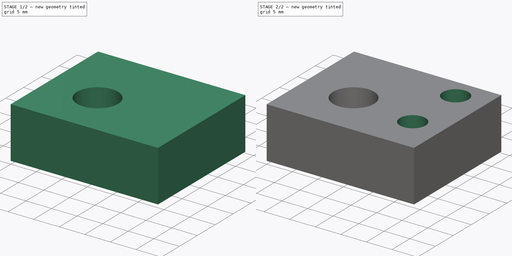
[diagram: build sequence overview — one tinted view per stage of 2, left to right]
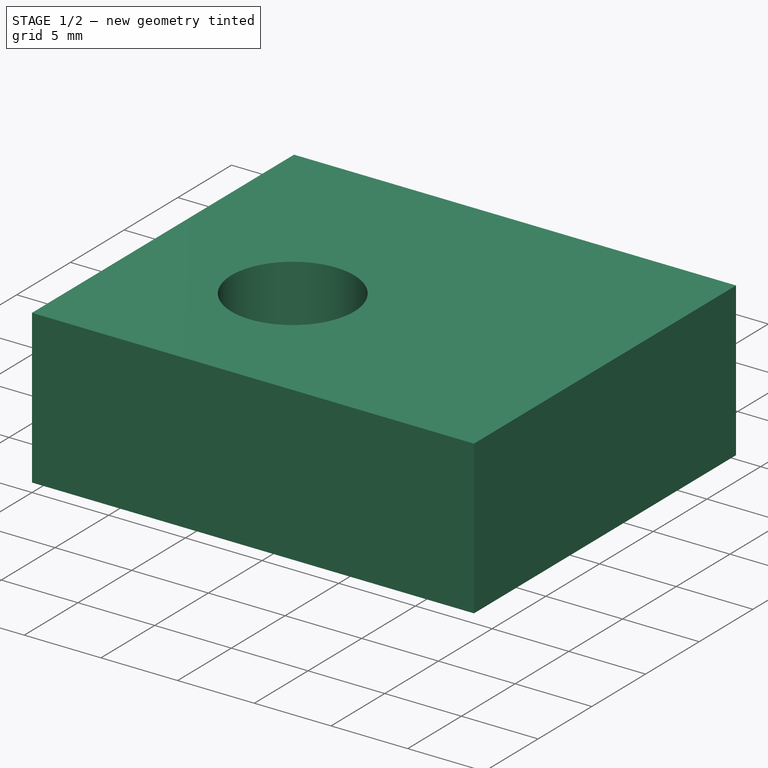
[diagram: stage 1 of 2 — iso view after this stage's code; geometry added in this stage tinted green]
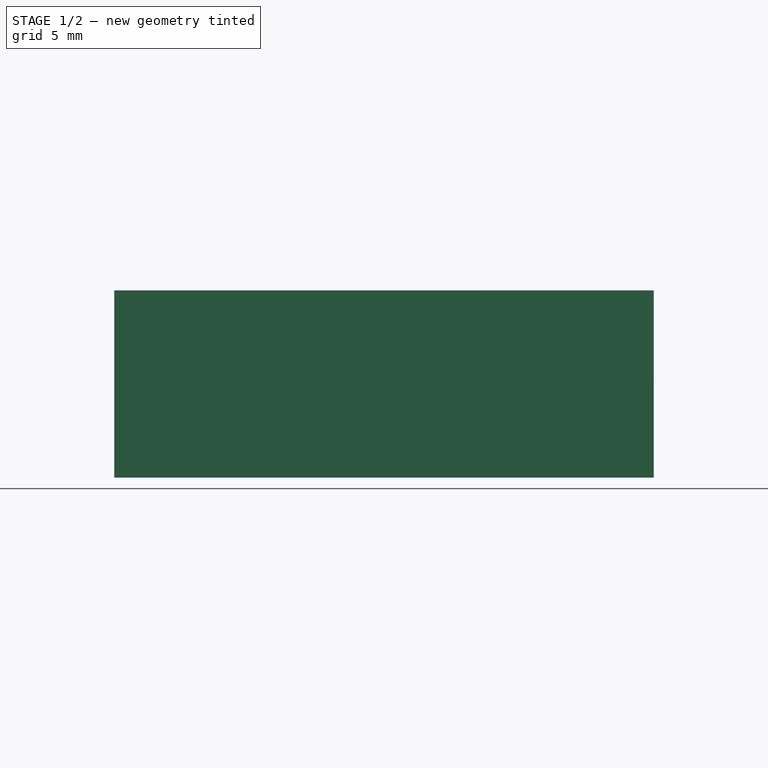
[diagram: stage 1 of 2 — front view after this stage's code; geometry added in this stage tinted green]
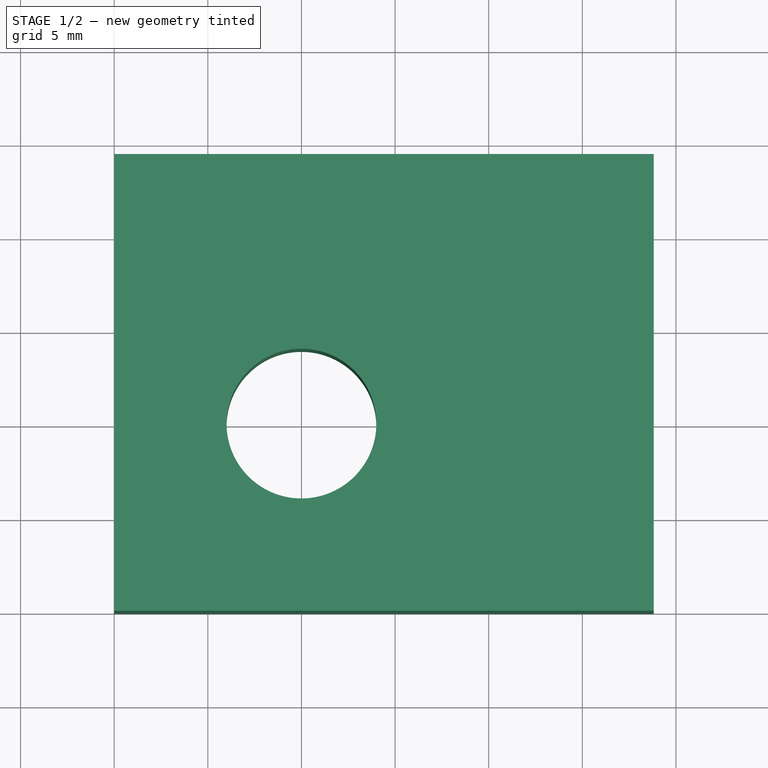
[diagram: stage 1 of 2 — top view after this stage's code; geometry added in this stage tinted green]
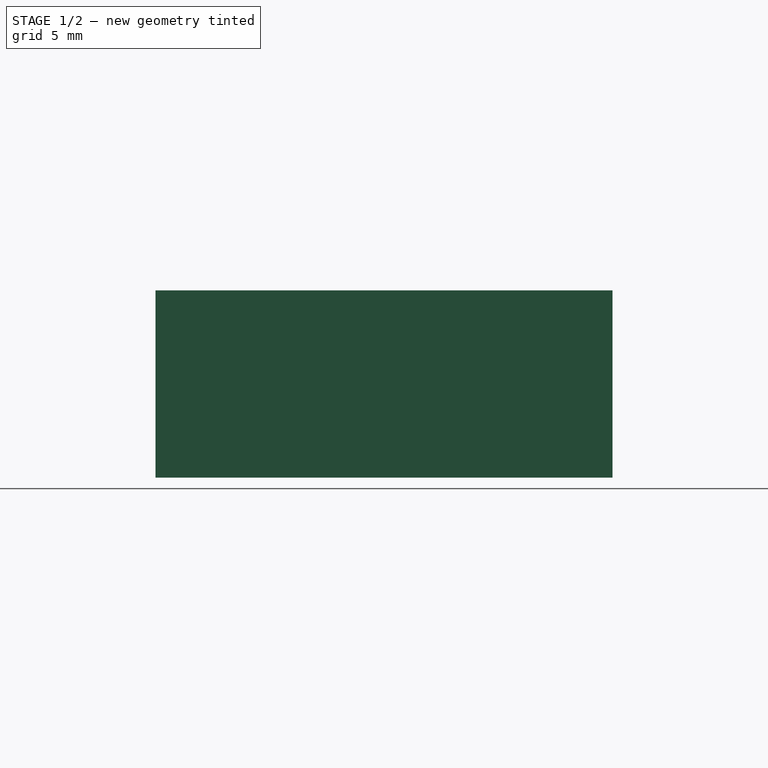
[diagram: stage 1 of 2 — right view after this stage's code; geometry added in this stage tinted green]
FCSTD DOCUMENT  (FreeCAD 0.20R29410 (Git))
Label: Base
License: All rights reserved
LicenseURL: http://en.wikipedia.org/wiki/All_rights_reserved
objects: App::FeaturePython×16, App::DocumentObjectGroupPython×10, Sketcher::SketchObject×3, PartDesign::Pocket×2, PartDesign::Pad×1, PartDesign::Body×1, App::Part×1
note: 10 computed .brp shape members not serialized (recipe doc carries the construction recipe); baked Part::Feature solids carry a one-line shape summary decoded from their .brp

FEATURE [Sketcher::SketchObject] Sketch
  FullyConstrained = false
  MapMode = 5
  Support = -> [XY_Plane001]
  sketch-geometry (4):
    g0: LineSegment StartX=0 StartY=0 StartZ=0 EndX=28.8174 EndY=0 EndZ=0
    g1: LineSegment StartX=28.8174 StartY=0 StartZ=0 EndX=28.8174 EndY=24.4012 EndZ=0
    g2: LineSegment StartX=28.8174 StartY=24.4012 StartZ=0 EndX=0 EndY=24.4012 EndZ=0
    g3: LineSegment StartX=0 StartY=24.4012 StartZ=0 EndX=0 EndY=0 EndZ=0
  constraints (9):
    c: Coincident(g0,g1)
    c: Coincident(g1,g2)
    c: Coincident(g2,g3)
    c: Coincident(g3,g0)
    c: Horizontal(g0)
    c: Horizontal(g2)
    c: Vertical(g1)
    c: Vertical(g3)
    c: Coincident(g0,g-1)
FEATURE [PartDesign::Pad] Pad
  Direction = (0,0,1)
  Length = 10
  Length2 = 10
  Profile = -> Sketch
  ReferenceAxis = -> Sketch [N_Axis]
  Type = 0
FEATURE [Sketcher::SketchObject] Sketch001
  FullyConstrained = true
  MapMode = 5
  Support = -> [XY_Plane001]
  sketch-geometry (1):
    g0: Circle CenterX=10 CenterY=10 CenterZ=0 NormalX=0 NormalY=0 NormalZ=1 AngleXU=0 Radius=4
  constraints (3):
    c: Diameter(g0) = 8
    c: DistanceX(g-1,g0) = 10
    c: DistanceY(g-1,g0) = 10
FEATURE [PartDesign::Pocket] Pocket
  BaseFeature = -> Pad
  Direction = (0,0,-1)
  Length = 5
  Length2 = 5
  Profile = -> Sketch001
  ReferenceAxis = -> Sketch001 [N_Axis]
  Reversed = true
  Type = 1
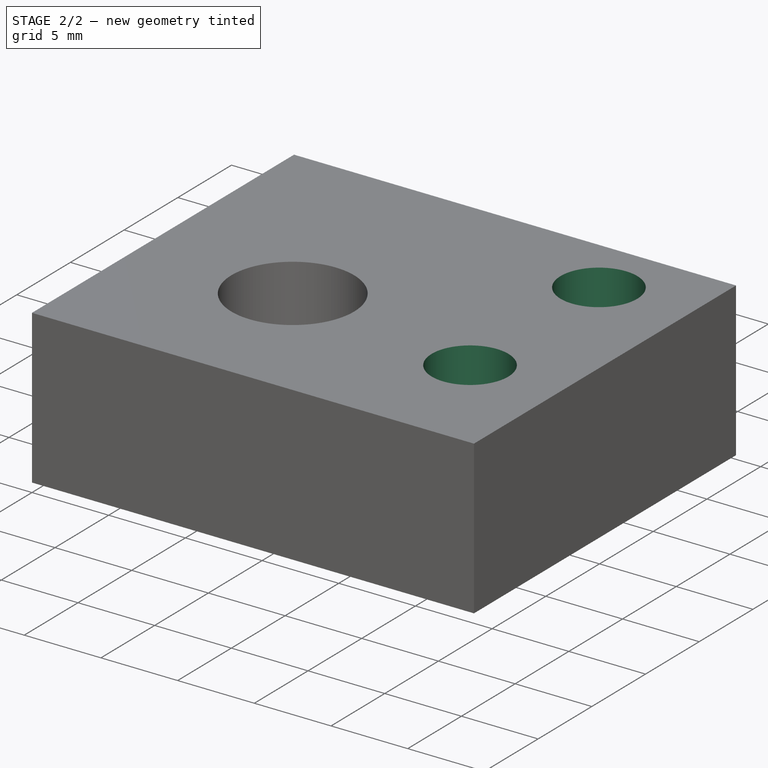
[diagram: stage 2 of 2 — iso view after this stage's code; geometry added in this stage tinted green]
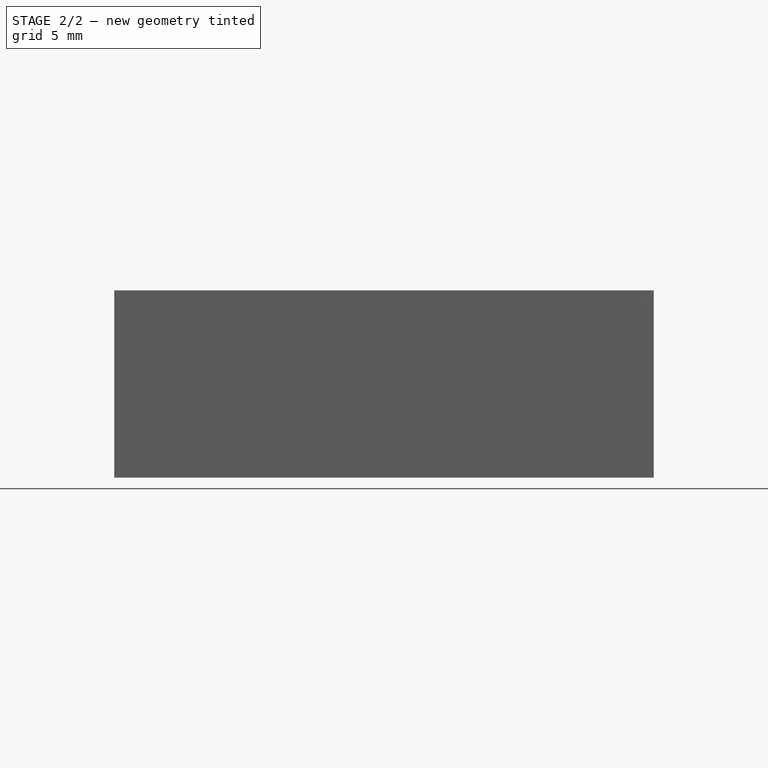
[diagram: stage 2 of 2 — front view after this stage's code; geometry added in this stage tinted green]
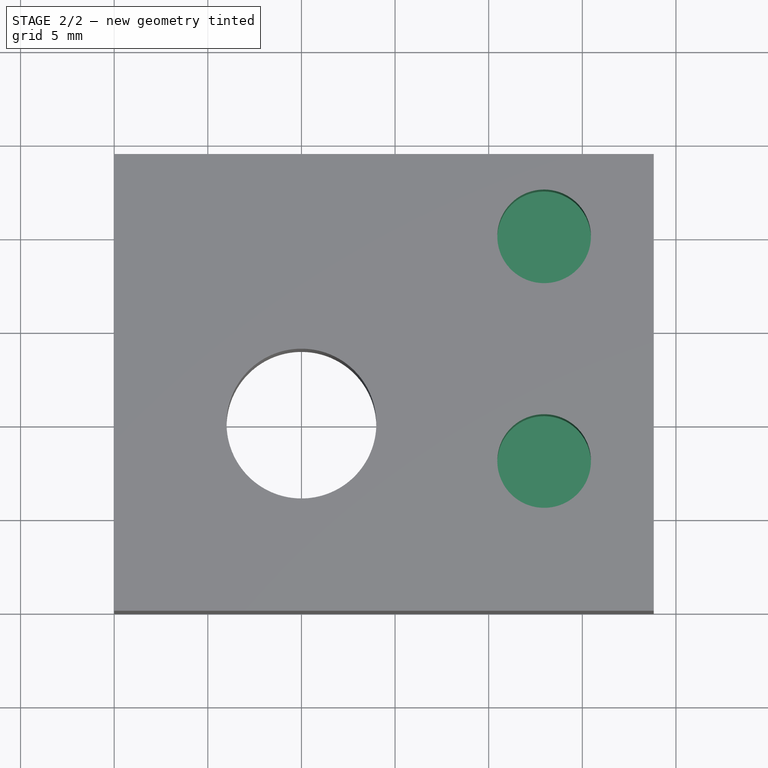
[diagram: stage 2 of 2 — top view after this stage's code; geometry added in this stage tinted green]
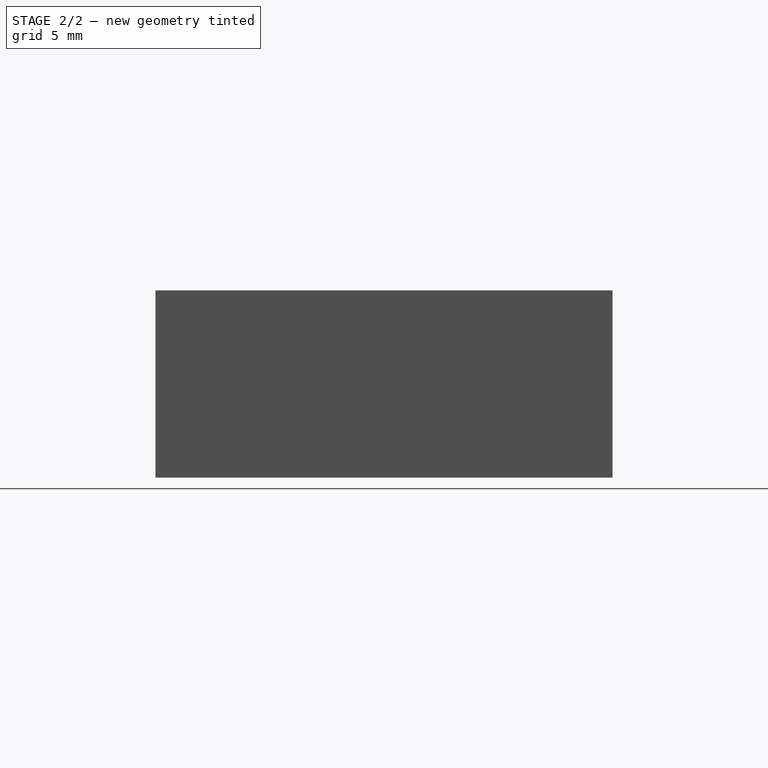
[diagram: stage 2 of 2 — right view after this stage's code; geometry added in this stage tinted green]
FEATURE [Sketcher::SketchObject] Sketch002
  FullyConstrained = false
  MapMode = 5
  Placement = pos=(0,0,10) rot=(0,0,1;0rad)
  Support = -> [Pocket]
  sketch-geometry (3):
    g0: Circle CenterX=22.9601 CenterY=8 CenterZ=0 NormalX=0 NormalY=0 NormalZ=1 AngleXU=0 Radius=2.5
    g1: Circle CenterX=22.9601 CenterY=20 CenterZ=0 NormalX=0 NormalY=0 NormalZ=1 AngleXU=0 Radius=2.5
    g2: LineSegment StartX=22.9601 StartY=8 StartZ=0 EndX=22.9601 EndY=20 EndZ=0
  constraints (7):
    c: Coincident(g2,g0)
    c: Coincident(g2,g1)
    c: Vertical(g2)
    c: Equal(g1,g0)
    c: Diameter(g1) = 5
    c: DistanceY(g0,g1) = 12
    c: DistanceY(g-1,g0) = 8
FEATURE [PartDesign::Pocket] Pocket001
  BaseFeature = -> Pocket
  Direction = (0,0,-1)
  Length = 6
  Length2 = 5
  Profile = -> Sketch002
  ReferenceAxis = -> Sketch002 [N_Axis]
  Type = 0
FEATURE [PartDesign::Body] Body
  Group = -> [Sketch,Pad,Sketch001,Pocket,Sketch002,Pocket001]
  Origin = -> Origin001
  Tip = -> Pocket001
FEATURE [App::Part] Part
  Group = -> [Body]
  Origin = -> Origin
FEATURE [App::FeaturePython] AnnotationPlane  label="AP1"  # WARN: FeaturePython — macro-defined, semantics opaque (R4)
  Direction = (0,-1,0)
  Offset = -10
  PointWithOffset = (14.4087,10,5)
  Type = unkwon
  faces = -> Pocket001 [Face1]
  p1 = (14.4087,0,5)
FEATURE [App::FeaturePython] GeometricTolerance001  label="GT2"  # WARN: FeaturePython — macro-defined, semantics opaque (R4)
  Characteristic = Cylindricity
  CharacteristicCode = ⌭
  CharacteristicIcon = :/dd/icons/Characteristic/cylindricity.svg
  Circumference = true
  ToleranceValue = 0.5
  Type = unkwon
FEATURE [App::FeaturePython] DatumFeature  label="A"  # WARN: FeaturePython — macro-defined, semantics opaque (R4)
  Type = unkwon
FEATURE [App::DocumentObjectGroupPython] Annotation5  label="Annotation3"  # scripted group (container) (typed FeaturePython)
  AP = -> AnnotationPlane
  DF = -> DatumFeature
  Direction = (0,0,-1)
  Group = -> [DatumFeature]
  circumferenceBool = false
  diameter = 0
  faces = -> [Pocket001]
  highLimit = 0
  lowLimit = 0
  p1 = (14.7481,10,0)
  selectedPoint = (14.8656,10,0)
  spBool = true
  toleranceDiameter = 0
  toleranceSelectBool = true
FEATURE [App::FeaturePython] DatumSystem  label="DS1: A"  # WARN: FeaturePython — macro-defined, semantics opaque (R4)
  Primary = -> DatumFeature
  Type = unkwon
FEATURE [App::FeaturePython] GeometricTolerance  label="GT1"  # WARN: FeaturePython — macro-defined, semantics opaque (R4)
  Characteristic = Perpendicularity
  CharacteristicCode = ⏊
  CharacteristicIcon = :/dd/icons/Characteristic/perpendicularity.svg
  Circumference = true
  DS = -> DatumSystem
  FeatureControlFrame = Maximum material condition
  FeatureControlFrameCode = Ⓜ
  FeatureControlFrameIcon = :/dd/icons/FeatureControlFrame/maximumMaterialCondition.svg
  ToleranceValue = 0.2
  Type = unkwon
FEATURE [App::FeaturePython] DatumFeature001  label="B"  # WARN: FeaturePython — macro-defined, semantics opaque (R4)
  Type = unkwon
FEATURE [App::DocumentObjectGroupPython] Annotation2  label="Annotation1"  # scripted group (container) (typed FeaturePython)
  AP = -> AnnotationPlane
  DF = -> DatumFeature001
  Direction = (0,0,1)
  GT = -> [GeometricTolerance,GeometricTolerance001]
  Group = -> [GeometricTolerance,GeometricTolerance001,DatumFeature001]
  circumferenceBool = false
  diameter = 6.89909
  faces = -> [Pocket001]
  highLimit = 0
  lowLimit = 0
  p1 = (14.2226,10,10)
  selectedPoint = (18.3464,10,20)
  spBool = true
  toleranceDiameter = 0
  toleranceSelectBool = true
FEATURE [App::FeaturePython] DatumSystem001  label="DS2: B"  # WARN: FeaturePython — macro-defined, semantics opaque (R4)
  Primary = -> DatumFeature001
  Type = unkwon
FEATURE [App::FeaturePython] DatumSystem002  label="DS3: A | B"  # WARN: FeaturePython — macro-defined, semantics opaque (R4)
  Primary = -> DatumFeature
  Secondary = -> DatumFeature001
  Type = unkwon
FEATURE [App::FeaturePython] GeometricTolerance002  label="GT3"  # WARN: FeaturePython — macro-defined, semantics opaque (R4)
  Characteristic = Cylindricity
  CharacteristicCode = ⌭
  CharacteristicIcon = :/dd/icons/Characteristic/cylindricity.svg
  Circumference = true
  DS = -> DatumSystem002
  FeatureControlFrame = Maximum material condition
  FeatureControlFrameCode = Ⓜ
  FeatureControlFrameIcon = :/dd/icons/FeatureControlFrame/maximumMaterialCondition.svg
  ToleranceValue = 0.172
  Type = unkwon
FEATURE [App::DocumentObjectGroupPython] Annotation4  label="Annotation2"  # scripted group (container) (typed FeaturePython)
  AP = -> AnnotationPlane
  Direction = (0,-1,0)
  GT = -> [GeometricTolerance002]
  Group = -> [GeometricTolerance002]
  circumferenceBool = true
  diameter = 5
  faces = -> [Pocket001]
  highLimit = 0
  lowLimit = 0
  p1 = (25.4601,8,10)
  selectedPoint = (30,2.50415,15)
  spBool = true
  toleranceDiameter = 0.02
  toleranceSelectBool = true
FEATURE [App::FeaturePython] AnnotationPlane001  label="AP2"  # WARN: FeaturePython — macro-defined, semantics opaque (R4)
  Direction = (0,0,1)
  Offset = -4
  PointWithOffset = (14.2226,12.2657,6)
  Type = unkwon
  faces = -> Pocket001 [Face5]
  p1 = (14.2226,12.2657,10)
FEATURE [App::FeaturePython] DatumFeature002  label="C"  # WARN: FeaturePython — macro-defined, semantics opaque (R4)
  Type = unkwon
FEATURE [App::DocumentObjectGroupPython] Annotation4001  label="Annotation4"  # scripted group (container) (typed FeaturePython)
  AP = -> AnnotationPlane
  DF = -> DatumFeature002
  Direction = (1,0,0)
  Group = -> [DatumFeature002]
  circumferenceBool = false
  diameter = 0
  faces = -> [Pocket001]
  highLimit = 0
  lowLimit = 0
  p1 = (28.8174,10,5)
  selectedPoint = (34.4087,10,6)
  spBool = true
  toleranceDiameter = 0
  toleranceSelectBool = true
FEATURE [App::FeaturePython] DatumSystem003  label="DS4: C"  # WARN: FeaturePython — macro-defined, semantics opaque (R4)
  Primary = -> DatumFeature002
  Type = unkwon
FEATURE [App::FeaturePython] GeometricTolerance003  label="GT4"  # WARN: FeaturePython — macro-defined, semantics opaque (R4)
  Characteristic = Cylindricity
  CharacteristicCode = ⌭
  CharacteristicIcon = :/dd/icons/Characteristic/cylindricity.svg
  Circumference = true
  DS = -> DatumSystem
  FeatureControlFrame = Tangent plane
  FeatureControlFrameCode = Ⓣ
  FeatureControlFrameIcon = :/dd/icons/FeatureControlFrame/tangentPlane.svg
  ToleranceValue = 0.2
  Type = unkwon
FEATURE [App::DocumentObjectGroupPython] Annotation5001  label="Annotation5"  # scripted group (container) (typed FeaturePython)
  AP = -> AnnotationPlane
  Direction = (0,-1,0)
  GT = -> [GeometricTolerance003]
  Group = -> [GeometricTolerance003]
  Type = unkwon
  circumferenceBool = true
  diameter = 8
  faces = -> [Pocket001]
  highLimit = 0.5
  lowLimit = -1
  p1 = (14,10,10)
  selectedPoint = (0.408678,10,22)
  spBool = true
  toleranceDiameter = 0
  toleranceSelectBool = false
FEATURE [App::FeaturePython] DatumSystem004  label="DS5: A | B | C"  # WARN: FeaturePython — macro-defined, semantics opaque (R4)
  Primary = -> DatumFeature
  Secondary = -> DatumFeature001
  Tertiary = -> DatumFeature002
  Type = unkwon
FEATURE [App::DocumentObjectGroupPython] Plane_AP3  label="DS"  # scripted group (container) (typed FeaturePython)
  Group = -> [DatumSystem001,DatumSystem002,DatumSystem,DatumSystem003,DatumSystem004]
  Type = DS
FEATURE [App::FeaturePython] AnnotationPlane002  label="AP3"  # WARN: FeaturePython — macro-defined, semantics opaque (R4)
  Direction = (0,0,1)
  PointWithOffset = (14.2226,12.2657,10)
  Type = unkwon
  faces = -> Pocket001 [Face5]
  p1 = (14.2226,12.2657,10)
FEATURE [App::DocumentObjectGroupPython] Plane_AP3001  # scripted group (container) (typed FeaturePython)
  Group = -> [AnnotationPlane002,Annotation4001]
  Type = Plane
FEATURE [App::FeaturePython] AnnotationPlane003  label="AP4"  # WARN: FeaturePython — macro-defined, semantics opaque (R4)
  Direction = (0,-1,0)
  Offset = -10
  PointWithOffset = (14.4087,10,5)
  Type = unkwon
  faces = -> Pocket001 [Face1]
  p1 = (14.4087,0,5)
FEATURE [App::DocumentObjectGroupPython] Plane_AP4  # scripted group (container) (typed FeaturePython)
  Group = -> [AnnotationPlane003,Annotation5001,Annotation2,Annotation4,Annotation5]
  Type = Plane
FEATURE [App::DocumentObjectGroupPython] Plane_AP5  # scripted group (container) (typed FeaturePython)
  Group = -> [AnnotationPlane001]
  Type = Plane
FEATURE [App::DocumentObjectGroupPython] GDT  # scripted group (container) (typed FeaturePython)
  Group = -> [Plane_AP3,Plane_AP3001,Plane_AP4,Plane_AP5]
  Type = unkwon
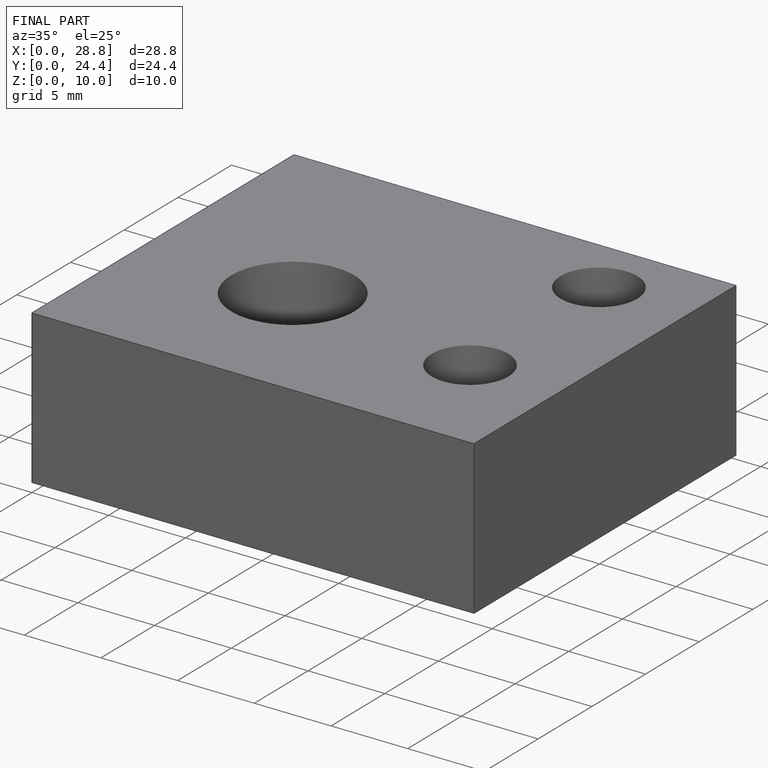
[diagram: finished part — iso view with bounding-box wireframe]
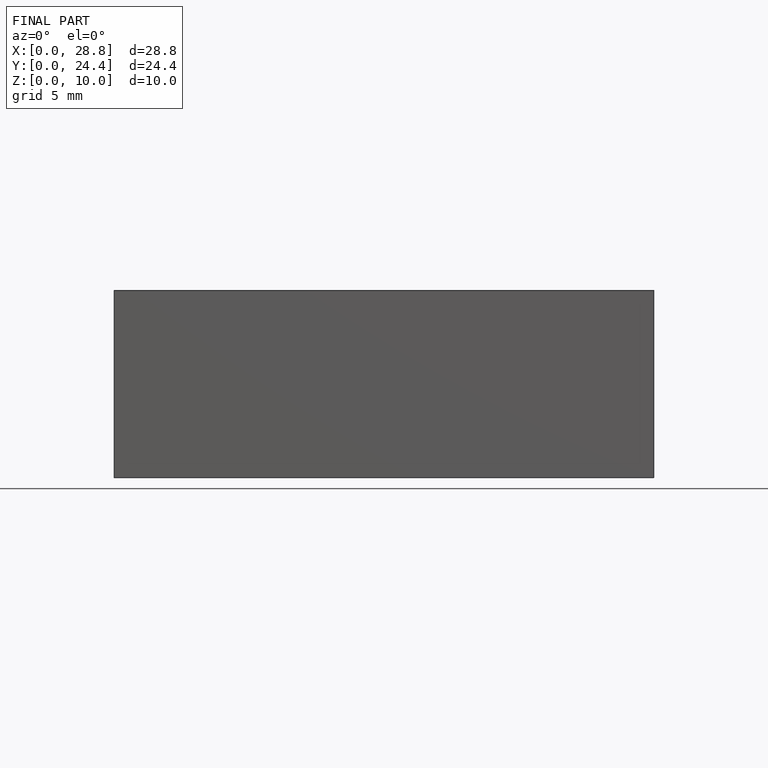
[diagram: finished part — front view with bounding-box wireframe]
